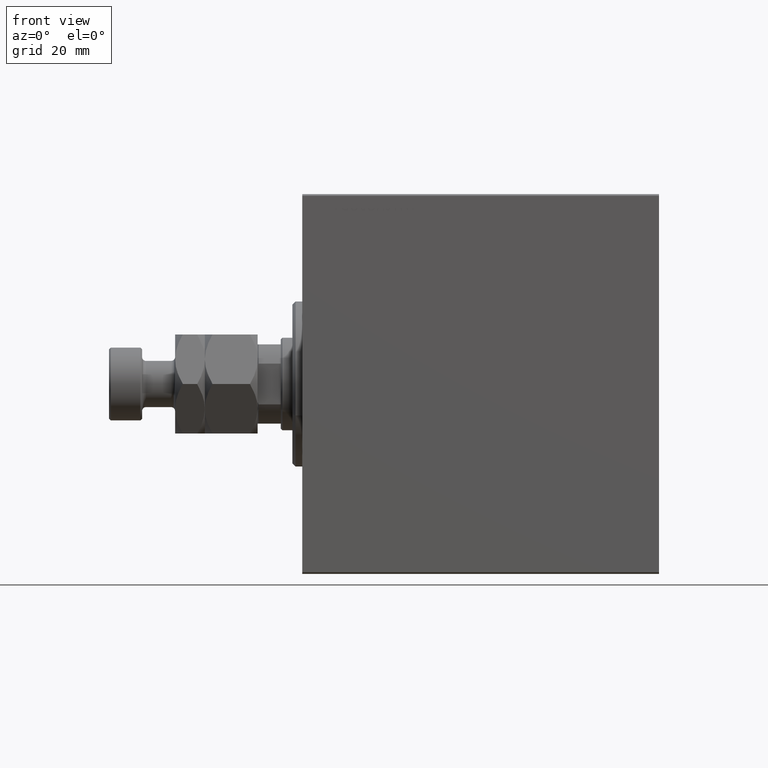
[diagram: clean part render]
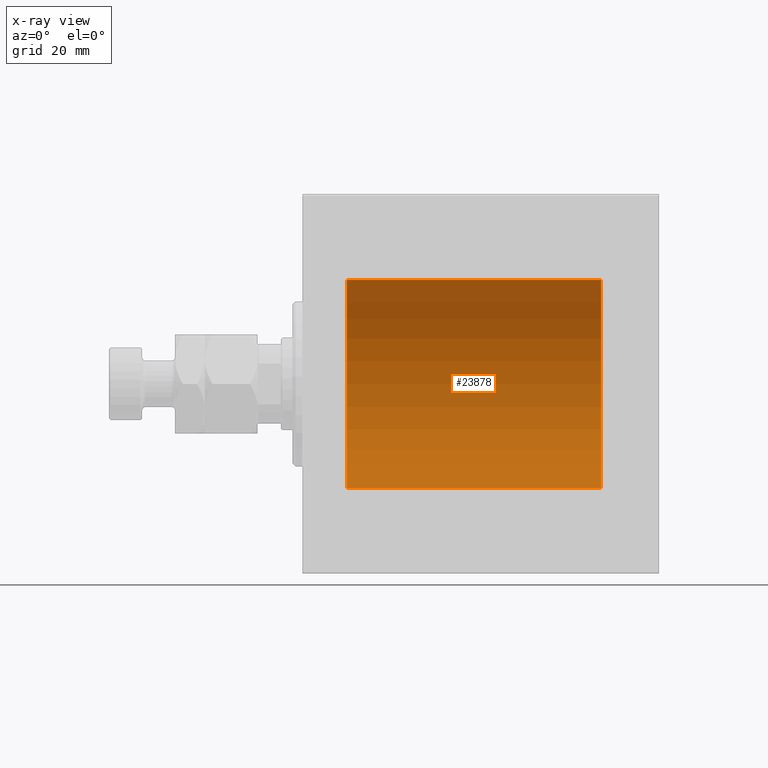
[diagram: x-ray — body ghosted, one internal face saturated and labeled with its STEP entity id]
A machine part, front view, then the same camera in x-ray: the body is ghosted and one INTERNAL B-rep face — a face not visible from any outside direction — is saturated and labeled: STEP entity #23878.
In plain terms, the highlighted cylindrical surface (partial cylindrical patch) has radius 31.5 mm, axis along (-1, -0, -0).
Its self-contained STEP definition (entity closure, byte-faithful):
#2755 = VECTOR ( 'NONE', #11637, 1000.000000000000000 ) ;
#3907 = CARTESIAN_POINT ( 'NONE',  ( 90.50000000000000000, 0.000000000000000000, 31.50000000000000000 ) ) ;
#3927 = ORIENTED_EDGE ( 'NONE', *, *, #15979, .T. ) ;
#4376 = EDGE_CURVE ( 'NONE', #12905, #13920, #22989, .T. ) ;
#4889 = CYLINDRICAL_SURFACE ( 'NONE', #7242, 31.50000000000000000 ) ;
#5444 = DIRECTION ( 'NONE',  ( 0.000000000000000000, 0.000000000000000000, 1.000000000000000000 ) ) ;
#6098 = CIRCLE ( 'NONE', #33276, 31.50000000000000000 ) ;
#7242 = AXIS2_PLACEMENT_3D ( 'NONE', #33408, #33172, #23055 ) ;
#7822 = CARTESIAN_POINT ( 'NONE',  ( 13.49999999999999822, 0.000000000000000000, 31.50000000000000000 ) ) ;
#8570 = FACE_OUTER_BOUND ( 'NONE', #12767, .T. ) ;
#8801 = CARTESIAN_POINT ( 'NONE',  ( 90.50000000000000000, 0.000000000000000000, 31.50000000000000000 ) ) ;
#10569 = DIRECTION ( 'NONE',  ( 0.000000000000000000, 0.000000000000000000, 1.000000000000000000 ) ) ;
#11637 = DIRECTION ( 'NONE',  ( -1.000000000000000000, -0.000000000000000000, -0.000000000000000000 ) ) ;
#12767 = EDGE_LOOP ( 'NONE', ( #38172, #44386, #3927, #26510 ) ) ;
#12905 = VERTEX_POINT ( 'NONE', #7822 ) ;
#13438 = VERTEX_POINT ( 'NONE', #3907 ) ;
#13920 = VERTEX_POINT ( 'NONE', #24227 ) ;
#15979 = EDGE_CURVE ( 'NONE', #13438, #12905, #26047, .T. ) ;
#16011 = DIRECTION ( 'NONE',  ( -1.000000000000000000, 0.000000000000000000, 0.000000000000000000 ) ) ;
#20798 = CARTESIAN_POINT ( 'NONE',  ( 90.50000000000000000, 3.857637417314162689E-15, -31.50000000000000000 ) ) ;
#21844 = EDGE_CURVE ( 'NONE', #21891, #13920, #36265, .T. ) ;
#21891 = VERTEX_POINT ( 'NONE', #20798 ) ;
#22989 = CIRCLE ( 'NONE', #28074, 31.50000000000000000 ) ;
#23055 = DIRECTION ( 'NONE',  ( 0.000000000000000000, 0.000000000000000000, 1.000000000000000000 ) ) ;
#23878 = ADVANCED_FACE ( 'NONE', ( #8570 ), #4889, .F. ) ;
#24227 = CARTESIAN_POINT ( 'NONE',  ( 13.49999999999999822, 3.857637417314162689E-15, -31.50000000000000000 ) ) ;
#26047 = LINE ( 'NONE', #8801, #26825 ) ;
#26510 = ORIENTED_EDGE ( 'NONE', *, *, #4376, .T. ) ;
#26825 = VECTOR ( 'NONE', #43764, 1000.000000000000000 ) ;
#28074 = AXIS2_PLACEMENT_3D ( 'NONE', #29823, #16011, #5444 ) ;
#29583 = CARTESIAN_POINT ( 'NONE',  ( 90.50000000000000000, 3.857637417314162689E-15, -31.50000000000000000 ) ) ;
#29823 = CARTESIAN_POINT ( 'NONE',  ( 13.49999999999999822, 0.000000000000000000, 0.000000000000000000 ) ) ;
#33172 = DIRECTION ( 'NONE',  ( -1.000000000000000000, -0.000000000000000000, -0.000000000000000000 ) ) ;
#33276 = AXIS2_PLACEMENT_3D ( 'NONE', #35410, #42084, #10569 ) ;
#33408 = CARTESIAN_POINT ( 'NONE',  ( 90.50000000000000000, 0.000000000000000000, 0.000000000000000000 ) ) ;
#35410 = CARTESIAN_POINT ( 'NONE',  ( 90.50000000000000000, 0.000000000000000000, 0.000000000000000000 ) ) ;
#36265 = LINE ( 'NONE', #29583, #2755 ) ;
#38172 = ORIENTED_EDGE ( 'NONE', *, *, #21844, .F. ) ;
#38408 = EDGE_CURVE ( 'NONE', #13438, #21891, #6098, .T. ) ;
#42084 = DIRECTION ( 'NONE',  ( -1.000000000000000000, 0.000000000000000000, 0.000000000000000000 ) ) ;
#43764 = DIRECTION ( 'NONE',  ( -1.000000000000000000, -0.000000000000000000, -0.000000000000000000 ) ) ;
#44386 = ORIENTED_EDGE ( 'NONE', *, *, #38408, .F. ) ;